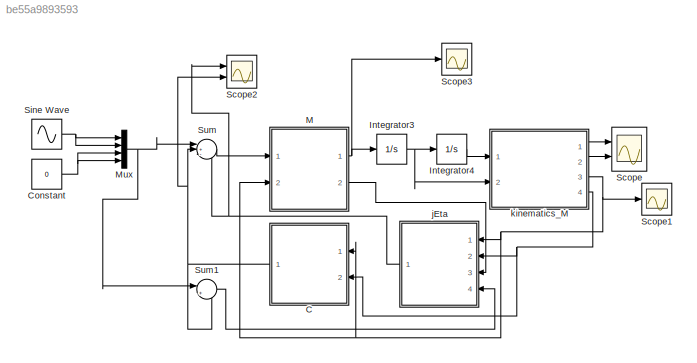
MODEL slx_be55a9893593
KIND model
CONFIG AbsTol = auto
CONFIG EnableMultiTasking = off
CONFIG FixedStep = auto
CONFIG MaxStep = auto
CONFIG MinStep = auto
CONFIG RelTol = 1e-3
CONFIG SampleTimeConstraint = Unconstrained
CONFIG Solver = VariableStepAuto
CONFIG SolverName = VariableStepAuto
CONFIG StartTime = 0.0
CONFIG StopTime = 10
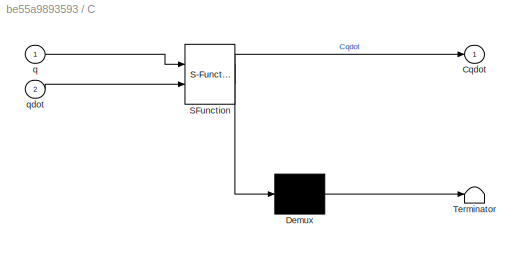
BLOCK [SubSystem] C
  ErrorFcn = Stateflow.Translate.translate
  PermitHierarchicalResolution = ExplicitOnly
  Ports = [2, 1]
  RequestExecContextInheritance = off
  SFBlockType = MATLAB Function
  TreatAsAtomicUnit = on
BLOCK [Demux] C/ Demux 
  Outputs = 1
  Ports = [1, 1]
BLOCK [S-Function] C/ SFunction 
  EnableBusSupport = on
  FunctionName = sf_sfun
  PortCounts = [2 2]
  Ports = [2, 2]
  SFcnIsStateOwnerBlock = off
  SFunctionDeploymentMode = off
  Tag = Stateflow S-Function dynamics 3
BLOCK [Terminator] C/ Terminator 
BLOCK [Outport] C/Cqdot
  IconDisplay = Port number
BLOCK [Inport] C/q
  IconDisplay = Port number
BLOCK [Inport] C/qdot
  IconDisplay = Port number
  Port = 2
BLOCK [Constant] Constant
  Value = 0
BLOCK [Integrator] Integrator3
  InitialCondition = [0 0 0 0]'
  Ports = [1, 1]
BLOCK [Integrator] Integrator4
  InitialCondition = [0 0 0 0]'
  Ports = [1, 1]
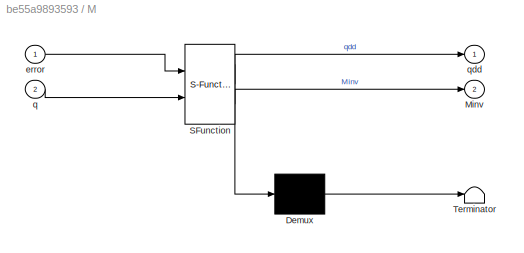
BLOCK [SubSystem] M
  ErrorFcn = Stateflow.Translate.translate
  PermitHierarchicalResolution = ExplicitOnly
  Ports = [2, 2]
  RequestExecContextInheritance = off
  SFBlockType = MATLAB Function
  TreatAsAtomicUnit = on
BLOCK [Demux] M/ Demux 
  Outputs = 1
  Ports = [1, 1]
BLOCK [S-Function] M/ SFunction 
  EnableBusSupport = on
  FunctionName = sf_sfun
  PortCounts = [2 3]
  Ports = [2, 3]
  SFcnIsStateOwnerBlock = off
  SFunctionDeploymentMode = off
  Tag = Stateflow S-Function dynamics 6
BLOCK [Terminator] M/ Terminator 
BLOCK [Outport] M/Minv
  IconDisplay = Port number
  Port = 2
BLOCK [Inport] M/error
  IconDisplay = Port number
BLOCK [Inport] M/q
  IconDisplay = Port number
  Port = 2
BLOCK [Outport] M/qdd
  IconDisplay = Port number
BLOCK [Mux] Mux
  DisplayOption = bar
  Ports = [4, 1]
BLOCK [Scope] Scope
  Floating = off
  NumInputPorts = 2
  Ports = [2]
  ScopeSpecificationString = Simulink.scopes.TimeScopeBlockCfg('CurrentConfiguration', extmgr.ConfigurationSet(extmgr.Configuration('Core','General UI',true),extmgr.Configuration('Core','Source UI',true),extmgr.Configuration('Sources','WiredSimulink',true),extmgr.Configuration('Visuals','Time Domain',true,'SerializedDisplays',{struct('MinYLimReal','-3.27225','MaxYLimReal','4.28501','YLabelReal','','MinYLimMag','0.00000','MaxY...<+1643ch>
BLOCK [Scope] Scope1
  Floating = off
  NumInputPorts = 1
  Ports = [1]
  ScopeSpecificationString = Simulink.scopes.TimeScopeBlockCfg('CurrentConfiguration', extmgr.ConfigurationSet(extmgr.Configuration('Core','General UI',true),extmgr.Configuration('Core','Source UI',true),extmgr.Configuration('Sources','WiredSimulink',true,'DataLoggingVariableName','ScopeData1'),extmgr.Configuration('Visuals','Time Domain',true,'SerializedDisplays',{struct('MinYLimReal','-971.5356','MaxYLimReal','8728.39525','...<+1586ch>
BLOCK [Scope] Scope2
  Floating = off
  NumInputPorts = 2
  Ports = [2]
  ScopeSpecificationString = Simulink.scopes.TimeScopeBlockCfg('CurrentConfiguration', extmgr.ConfigurationSet(extmgr.Configuration('Core','General UI',true),extmgr.Configuration('Core','Source UI',true),extmgr.Configuration('Sources','WiredSimulink',true,'DataLoggingVariableName','ScopeData1'),extmgr.Configuration('Visuals','Time Domain',true,'SerializedDisplays',{struct('MinYLimReal','-14033389847214.51563','MaxYLimReal','5...<+1774ch>
BLOCK [Scope] Scope3
  Floating = off
  NumInputPorts = 1
  Ports = [1]
  ScopeSpecificationString = Simulink.scopes.TimeScopeBlockCfg('CurrentConfiguration', extmgr.ConfigurationSet(extmgr.Configuration('Core','General UI',true),extmgr.Configuration('Core','Source UI',true),extmgr.Configuration('Sources','WiredSimulink',true,'DataLoggingVariableName','ScopeData2'),extmgr.Configuration('Visuals','Time Domain',true,'SerializedDisplays',{struct('MinYLimReal','-45650169360764920.00000','MaxYLimReal'...<+1657ch>
BLOCK [Sin] Sine Wave
  Ports = [0, 1]
  SampleTime = 0
BLOCK [Sum] Sum
  IconShape = round
  InputSameDT = off
  Inputs = |+-+
  OutDataTypeStr = Inherit: Inherit via internal rule
  Ports = [3, 1]
  SaturateOnIntegerOverflow = off
BLOCK [Sum] Sum1
  IconShape = round
  InputSameDT = off
  Inputs = |+-
  OutDataTypeStr = Inherit: Inherit via internal rule
  Ports = [2, 1]
  SaturateOnIntegerOverflow = off
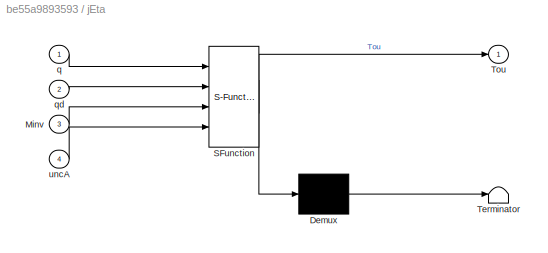
BLOCK [SubSystem] jEta
  ErrorFcn = Stateflow.Translate.translate
  PermitHierarchicalResolution = ExplicitOnly
  Ports = [4, 1]
  RequestExecContextInheritance = off
  SFBlockType = MATLAB Function
  TreatAsAtomicUnit = on
BLOCK [Demux] jEta/ Demux 
  Outputs = 1
  Ports = [1, 1]
BLOCK [S-Function] jEta/ SFunction 
  EnableBusSupport = on
  FunctionName = sf_sfun
  PortCounts = [4 2]
  Ports = [4, 2]
  SFcnIsStateOwnerBlock = off
  SFunctionDeploymentMode = off
  Tag = Stateflow S-Function dynamics 5
BLOCK [Terminator] jEta/ Terminator 
BLOCK [Inport] jEta/Minv
  IconDisplay = Port number
  Port = 3
BLOCK [Outport] jEta/Tou
  IconDisplay = Port number
BLOCK [Inport] jEta/q
  IconDisplay = Port number
BLOCK [Inport] jEta/qd
  IconDisplay = Port number
  Port = 2
BLOCK [Inport] jEta/uncA
  IconDisplay = Port number
  Port = 4
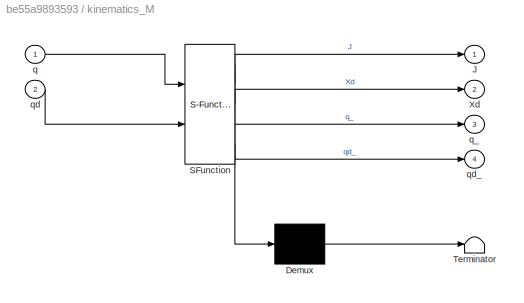
BLOCK [SubSystem] kinematics_M
  ErrorFcn = Stateflow.Translate.translate
  PermitHierarchicalResolution = ExplicitOnly
  Ports = [2, 4]
  RequestExecContextInheritance = off
  SFBlockType = MATLAB Function
  TreatAsAtomicUnit = on
BLOCK [Demux] kinematics_M/ Demux 
  Outputs = 1
  Ports = [1, 1]
BLOCK [S-Function] kinematics_M/ SFunction 
  EnableBusSupport = on
  FunctionName = sf_sfun
  PortCounts = [2 5]
  Ports = [2, 5]
  SFcnIsStateOwnerBlock = off
  SFunctionDeploymentMode = off
  Tag = Stateflow S-Function dynamics 16
BLOCK [Terminator] kinematics_M/ Terminator 
BLOCK [Outport] kinematics_M/J
  IconDisplay = Port number
BLOCK [Outport] kinematics_M/Xd
  IconDisplay = Port number
  Port = 2
BLOCK [Inport] kinematics_M/q
  IconDisplay = Port number
BLOCK [Outport] kinematics_M/q_
  IconDisplay = Port number
  Port = 3
BLOCK [Inport] kinematics_M/qd
  IconDisplay = Port number
  Port = 2
BLOCK [Outport] kinematics_M/qd_
  IconDisplay = Port number
  Port = 4
NET C:1 -> Scope2:2, Sum1:2, Sum:2
NET Constant:1 -> Mux:3, Mux:4
NET Integrator3:1 -> Integrator4:1, kinematics_M:2
LINE Integrator4:1 -> kinematics_M:1
NET M:1 -> Integrator3:1, Scope3:1
LINE M:2 -> jEta:3
NET Mux:1 -> Sum1:1, Sum:1
NET Sine Wave:1 -> Mux:1, Mux:2
LINE Sum1:1 -> jEta:4
LINE Sum:1 -> M:1
NET jEta:1 -> Scope2:1, Sum:3
LINE kinematics_M:1 -> Scope:1
LINE kinematics_M:2 -> Scope:2
NET kinematics_M:3 -> C:1, M:2, Scope1:1, jEta:1
NET kinematics_M:4 -> C:2, jEta:2
note: NET lines group one-source signal fan-out (src -> all destinations, sorted); 1:1 wires keep LINE
CHART C states=1 transitions=1
  STATE_LABEL 'eML_blk_kernel()'
  STATE_LABEL 'SCRIPT:\nfunction Cqdot  = fcn(q, qdot)\nq1 = q(1);\nq2 = q(2);\nq3 = q(3);\nq4 = q(4);\n\nC=[0.E-307,(-0.234804E-3).*cos(q1).*sin(q2),0.496696E-3.*sin(q1+(-1).*q3),cos(q1).*((-0.234804E-3).*sin(q1)+(-0.234804E-3).*sin(q2));0.234804E-3.*cos(q1).*sin(q2),0.E-307,0,0.234804E-3.*cos(q1).*sin(q2)+(-0.469609E-3).*cos(q2).*sin(q4);(-0.496696E-3).*sin(q1+(-1).*q3),0,0.E-307,0;cos(q1).*(0.234804E-3.*sin(q1)+0.23...<+186ch>'
CHART jEta states=1 transitions=1
  STATE_LABEL 'eML_blk_kernel()'
  STATE_LABEL "SCRIPT:\nfunction Tou  = fcn(q, qd, Minv, uncA)\nl = 0.18;\nq1 = q(1);\nq2 = q(2);\nq3 = q(3);\nq4 = q(4);\n\nJEta = l .* [sin(q1) -sin(q2) sin(q3) -sin(q4);\n                -cos(q1) cos(q2) -cos(q3) cos(q4)];\n   \nJdot = l .* [cos(q1) -cos(q2) cos(q3) -cos(q4)\n                sin(q1) -sin(q2) sin(q3) -sin(q4)];\n\nB = (JEta * Minv * uncA) + (Jdot * qd);\nA = inv(JEta * Minv * JEta');\nlambda = -1 * (A * B);\n\n...<+21ch>"
CHART M states=1 transitions=1
  STATE_LABEL 'eML_blk_kernel()'
  STATE_LABEL 'SCRIPT:\nfunction [qdd, Minv]  = fcn(error, q)\nl=0.18;\nq1 = q(1);\nq2 = q(2);\nq3 = q(3);\nq4 = q(4);\n\nm1=0.03285303;\nm2=0.02898819;\nm3=0.03066024;\nm4=0.02898819;\nI1=2.19e-006;\nI2=1.99e-006;\nI3=1.2e-006;\nI4=1.99e-006;\nJv1=[(-l/2)*sin(q1) 0 0 0; (l/2)*cos(q1) 0 0 0];\nJv2=[0 (-l/2)*sin(q2) 0 0; 0 (l/2)*cos(q2) 0 0];\nJv3=[-l*sin(q1) 0 (-l/2)*sin(q3) 0; l*cos(q1) 0 (l/2)*cos(q3) 0];\nJv4=[0 -l*sin(q2) 0 (-...<+446ch>'
CHART kinematics_M states=1 transitions=1
  STATE_LABEL 'eML_blk_kernel()'
  STATE_LABEL 'SCRIPT:\nfunction [J, Xd, q_, qd_]  = fcn(q, qd)\n\nq1 = q(1);\nq2 = q(2);\n\nl = 0.18;\nb = 0.155;\n\nxFlag = 0;\nyFlag = 0;\n\nif q1 <= 0\n    q1 = 0.1*pi;\nend\n\nif q2 <= 0\n    q2 = 0.1*pi;\nend\n\nif q2 < q1\n    q2 = q1;\nend\n\nxb = l*cos(q2);\nyb = l*sin(q2);\nxd = l + l*cos(q1);\nyd = l*sin(q1);\n\ndsquare = (xb - xd)^2 + (yb - yd)^2;\n\n%avoiding singularity,\nif dsquare >= (2*l)^2\n    \n    dsquare = (2*l)^2;\n    x = ...<+2967ch>'
